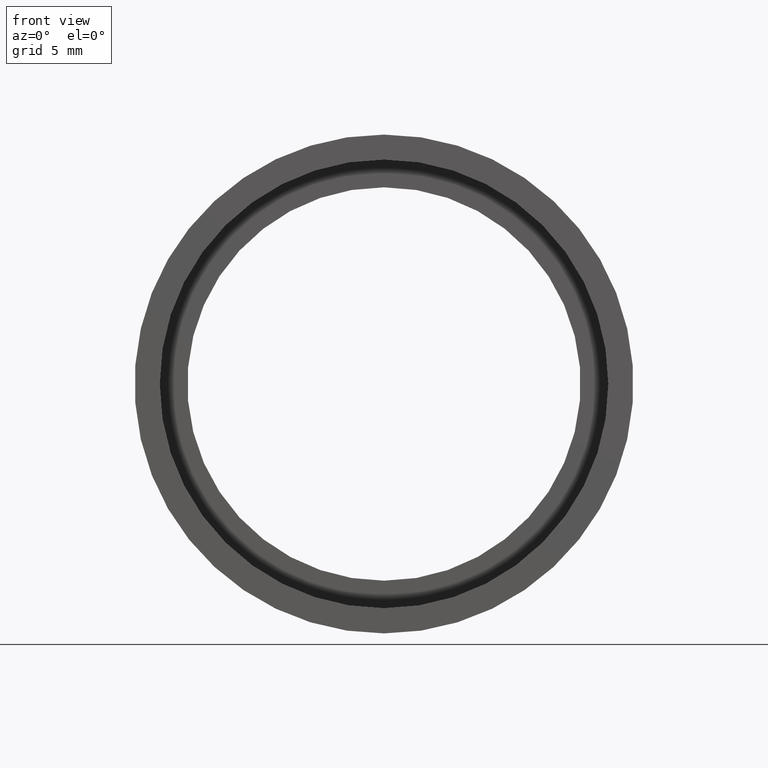
[diagram: clean part render]
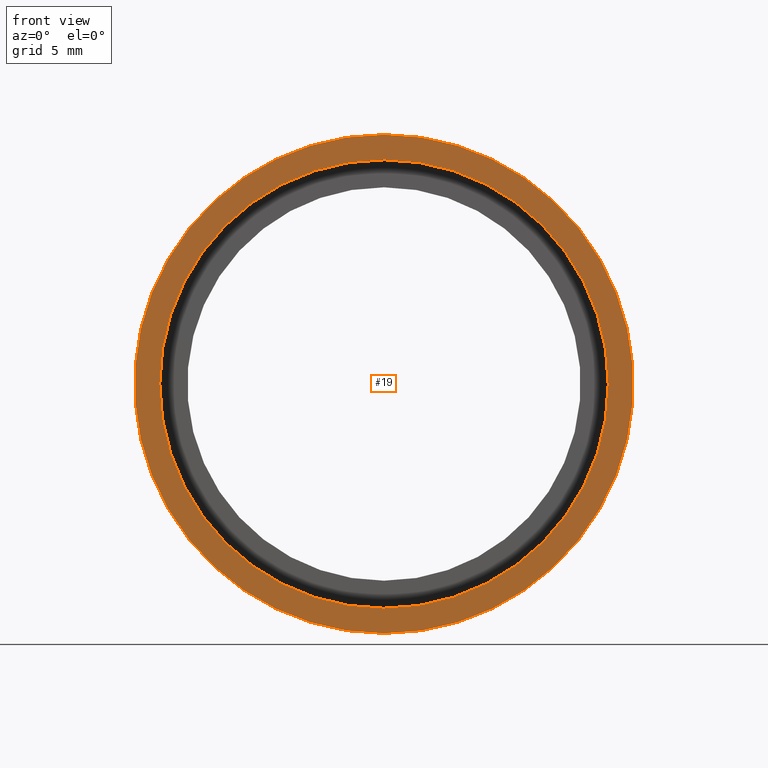
[diagram: same view with one face highlighted and labeled with its STEP entity id]
A machine part, front view. The second image highlights one B-rep face of the part: STEP entity #19.
In plain terms, the highlighted planar face has unit normal (-0, 1, 0).
Its self-contained STEP definition (entity closure, byte-faithful):
#1 = EDGE_CURVE ( 'NONE', #366, #223, #378, .T. ) ;
#13 = CARTESIAN_POINT ( 'NONE',  ( 0.0000000000000000000, -2.775557561562891400E-014, 15.85000000000002100 ) ) ;
#17 = ORIENTED_EDGE ( 'NONE', *, *, #1, .T. ) ;
#19 = ADVANCED_FACE ( 'NONE', ( #49, #125 ), #265, .F. ) ;
#24 = DIRECTION ( 'NONE',  ( -0.0000000000000000000, 1.000000000000000000, 0.0000000000000000000 ) ) ;
#49 = FACE_OUTER_BOUND ( 'NONE', #539, .T. ) ;
#69 = CARTESIAN_POINT ( 'NONE',  ( 0.0000000000000000000, 2.775557561562891400E-014, 0.0000000000000000000 ) ) ;
#92 = ORIENTED_EDGE ( 'NONE', *, *, #162, .F. ) ;
#102 = CARTESIAN_POINT ( 'NONE',  ( 0.0000000000000000000, 2.775557561562891400E-014, 0.0000000000000000000 ) ) ;
#125 = FACE_BOUND ( 'NONE', #584, .T. ) ;
#132 = DIRECTION ( 'NONE',  ( 0.0000000000000000000, 0.0000000000000000000, 1.000000000000000000 ) ) ;
#154 = CARTESIAN_POINT ( 'NONE',  ( 0.0000000000000000000, 2.775557561562891400E-014, 14.25000000000000000 ) ) ;
#158 = AXIS2_PLACEMENT_3D ( 'NONE', #513, #226, #563 ) ;
#162 = EDGE_CURVE ( 'NONE', #429, #492, #528, .T. ) ;
#168 = EDGE_CURVE ( 'NONE', #492, #429, #489, .T. ) ;
#213 = DIRECTION ( 'NONE',  ( 0.0000000000000000000, 0.0000000000000000000, 1.000000000000000000 ) ) ;
#219 = DIRECTION ( 'NONE',  ( -0.0000000000000000000, 1.000000000000000000, -0.0000000000000000000 ) ) ;
#223 = VERTEX_POINT ( 'NONE', #387 ) ;
#226 = DIRECTION ( 'NONE',  ( -0.0000000000000000000, 1.000000000000000000, -0.0000000000000000000 ) ) ;
#265 = PLANE ( 'NONE',  #500 ) ;
#273 = ORIENTED_EDGE ( 'NONE', *, *, #168, .F. ) ;
#286 = EDGE_CURVE ( 'NONE', #223, #366, #364, .T. ) ;
#349 = CARTESIAN_POINT ( 'NONE',  ( 1.941065176648557100E-015, -2.775557561562891400E-014, -15.85000000000002100 ) ) ;
#364 = CIRCLE ( 'NONE', #435, 14.25000000000000000 ) ;
#366 = VERTEX_POINT ( 'NONE', #154 ) ;
#367 = ORIENTED_EDGE ( 'NONE', *, *, #286, .T. ) ;
#378 = CIRCLE ( 'NONE', #593, 14.25000000000000000 ) ;
#387 = CARTESIAN_POINT ( 'NONE',  ( 1.745121688784978200E-015, 2.775557561562891400E-014, -14.25000000000000000 ) ) ;
#394 = DIRECTION ( 'NONE',  ( -0.0000000000000000000, 1.000000000000000000, -0.0000000000000000000 ) ) ;
#411 = DIRECTION ( 'NONE',  ( 0.0000000000000000000, 0.0000000000000000000, 1.000000000000000000 ) ) ;
#412 = DIRECTION ( 'NONE',  ( -0.0000000000000000000, 1.000000000000000000, -0.0000000000000000000 ) ) ;
#429 = VERTEX_POINT ( 'NONE', #349 ) ;
#435 = AXIS2_PLACEMENT_3D ( 'NONE', #102, #394, #436 ) ;
#436 = DIRECTION ( 'NONE',  ( 0.0000000000000000000, 0.0000000000000000000, 1.000000000000000000 ) ) ;
#489 = CIRCLE ( 'NONE', #158, 15.85000000000002100 ) ;
#492 = VERTEX_POINT ( 'NONE', #13 ) ;
#497 = CARTESIAN_POINT ( 'NONE',  ( 14.25000000000000000, 8.726008142763375300E-015, 0.0000000000000000000 ) ) ;
#500 = AXIS2_PLACEMENT_3D ( 'NONE', #497, #24, #213 ) ;
#513 = CARTESIAN_POINT ( 'NONE',  ( 0.0000000000000000000, -2.775557561562891400E-014, 0.0000000000000000000 ) ) ;
#528 = CIRCLE ( 'NONE', #583, 15.85000000000002100 ) ;
#539 = EDGE_LOOP ( 'NONE', ( #273, #92 ) ) ;
#551 = CARTESIAN_POINT ( 'NONE',  ( 0.0000000000000000000, -2.775557561562891400E-014, 0.0000000000000000000 ) ) ;
#563 = DIRECTION ( 'NONE',  ( 0.0000000000000000000, 0.0000000000000000000, 1.000000000000000000 ) ) ;
#583 = AXIS2_PLACEMENT_3D ( 'NONE', #551, #219, #132 ) ;
#584 = EDGE_LOOP ( 'NONE', ( #17, #367 ) ) ;
#593 = AXIS2_PLACEMENT_3D ( 'NONE', #69, #412, #411 ) ;